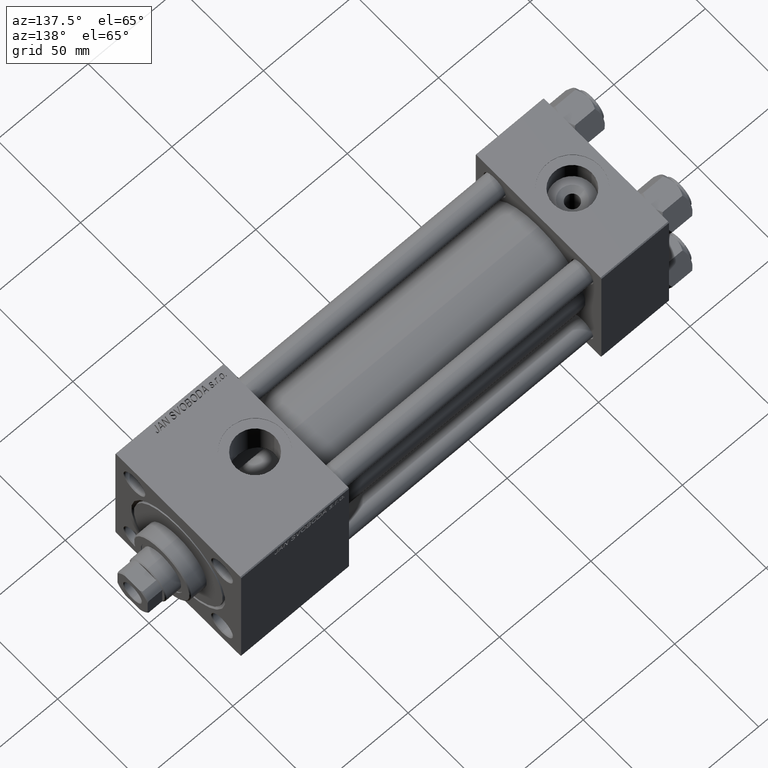
[diagram: clean part render]
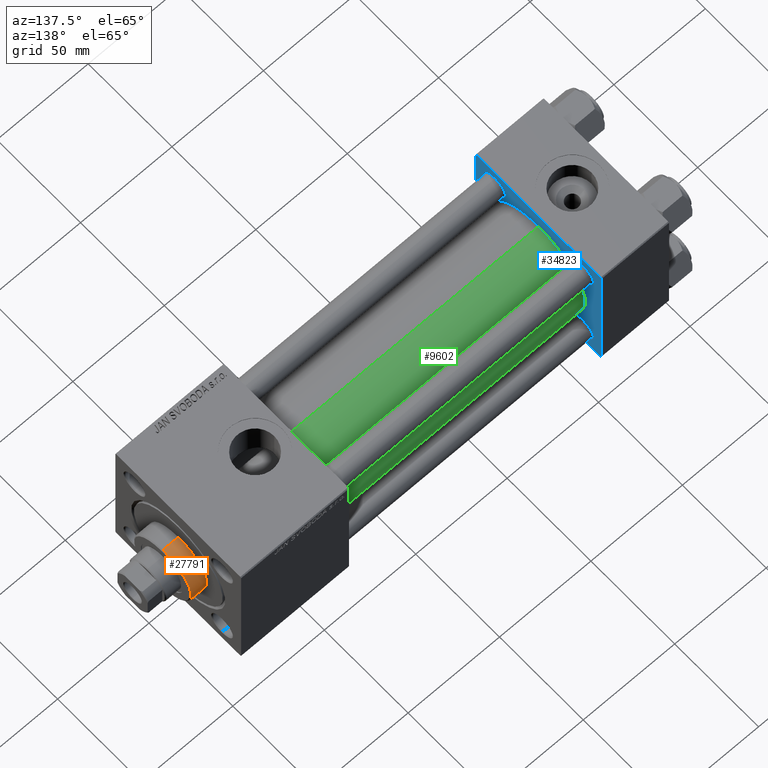
[diagram: same view with three faces highlighted in distinct colors, each labeled with its STEP entity id]
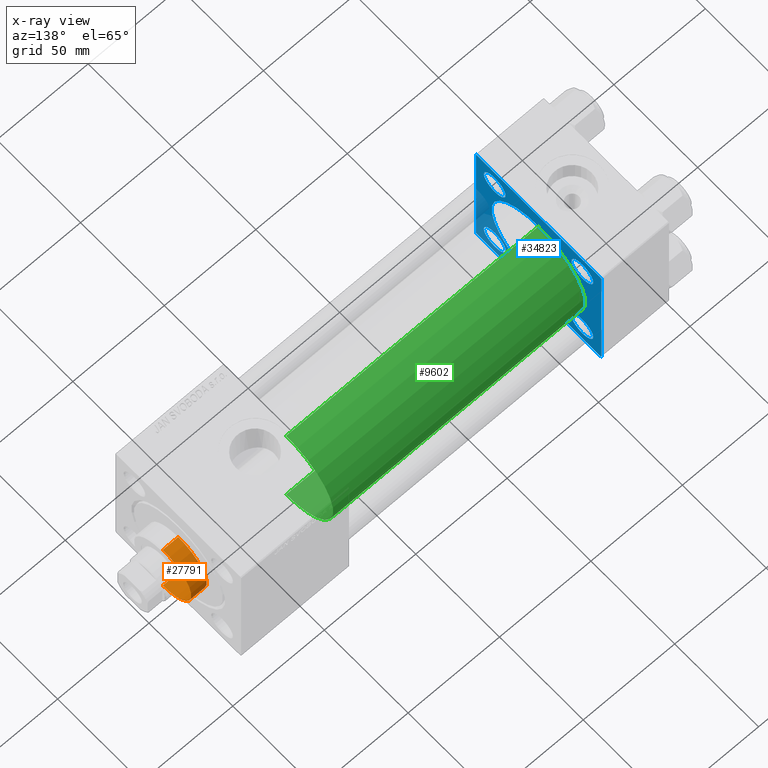
[diagram: x-ray of the same camera — body ghosted, the three highlighted faces saturated]
A machine part, auxiliary view with three faces highlighted in distinct colors.
The next image is the same camera in x-ray (body ghosted, the three faces saturated) — at least one of them is partly hidden behind the body in this view.
Their STEP definitions:

[orange] entity #27791 — the highlighted cylindrical surface (partial cylindrical patch) has radius 17 mm, axis along (-1, -0, 0).
#287 = CARTESIAN_POINT ( 'NONE',  ( 17.00000000000000000, 2.081899558550500280E-15, 28.69999999999999929 ) ) ;
#621 = CIRCLE ( 'NONE', #7906, 17.00000000000000000 ) ;
#1703 = CYLINDRICAL_SURFACE ( 'NONE', #15529, 17.00000000000000000 ) ;
#2068 = ORIENTED_EDGE ( 'NONE', *, *, #4958, .T. ) ;
#2938 = VERTEX_POINT ( 'NONE', #287 ) ;
#3227 = CARTESIAN_POINT ( 'NONE',  ( -17.00000000000000000, 0.000000000000000000, 37.19999999999999574 ) ) ;
#3911 = CIRCLE ( 'NONE', #42826, 17.00000000000000000 ) ;
#4677 = CARTESIAN_POINT ( 'NONE',  ( -17.00000000000000000, 0.000000000000000000, 28.69999999999999929 ) ) ;
#4958 = EDGE_CURVE ( 'NONE', #2938, #11171, #3911, .T. ) ;
#5667 = VECTOR ( 'NONE', #30057, 1000.000000000000000 ) ;
#5769 = DIRECTION ( 'NONE',  ( -0.000000000000000000, -0.000000000000000000, -1.000000000000000000 ) ) ;
#6268 = EDGE_CURVE ( 'NONE', #23457, #11171, #18640, .T. ) ;
#6475 = CARTESIAN_POINT ( 'NONE',  ( 0.000000000000000000, 0.000000000000000000, 28.69999999999999929 ) ) ;
#7906 = AXIS2_PLACEMENT_3D ( 'NONE', #19051, #11450, #42174 ) ;
#11171 = VERTEX_POINT ( 'NONE', #4677 ) ;
#11450 = DIRECTION ( 'NONE',  ( 0.000000000000000000, 0.000000000000000000, -1.000000000000000000 ) ) ;
#12272 = VECTOR ( 'NONE', #46386, 1000.000000000000000 ) ;
#13356 = DIRECTION ( 'NONE',  ( -1.000000000000000000, 0.000000000000000000, 0.000000000000000000 ) ) ;
#14586 = CARTESIAN_POINT ( 'NONE',  ( -17.00000000000000000, 0.000000000000000000, 37.69999999999999574 ) ) ;
#15529 = AXIS2_PLACEMENT_3D ( 'NONE', #17172, #5769, #13356 ) ;
#17172 = CARTESIAN_POINT ( 'NONE',  ( 0.000000000000000000, 0.000000000000000000, 37.69999999999999574 ) ) ;
#18131 = DIRECTION ( 'NONE',  ( 1.000000000000000000, 0.000000000000000000, 0.000000000000000000 ) ) ;
#18640 = LINE ( 'NONE', #14586, #5667 ) ;
#19051 = CARTESIAN_POINT ( 'NONE',  ( 0.000000000000000000, 0.000000000000000000, 37.19999999999999574 ) ) ;
#19279 = CARTESIAN_POINT ( 'NONE',  ( 17.00000000000000000, 2.081899558550500280E-15, 37.19999999999999574 ) ) ;
#20982 = FACE_OUTER_BOUND ( 'NONE', #40441, .T. ) ;
#21948 = DIRECTION ( 'NONE',  ( 0.000000000000000000, 0.000000000000000000, 1.000000000000000000 ) ) ;
#23457 = VERTEX_POINT ( 'NONE', #3227 ) ;
#26773 = EDGE_CURVE ( 'NONE', #48679, #2938, #41827, .T. ) ;
#27791 = ADVANCED_FACE ( 'NONE', ( #20982 ), #1703, .T. ) ;
#30057 = DIRECTION ( 'NONE',  ( -0.000000000000000000, -0.000000000000000000, -1.000000000000000000 ) ) ;
#30884 = CARTESIAN_POINT ( 'NONE',  ( 17.00000000000000000, 2.081899558550500280E-15, 37.69999999999999574 ) ) ;
#37750 = ORIENTED_EDGE ( 'NONE', *, *, #26773, .T. ) ;
#40441 = EDGE_LOOP ( 'NONE', ( #49896, #37750, #2068, #44339 ) ) ;
#41827 = LINE ( 'NONE', #30884, #12272 ) ;
#42174 = DIRECTION ( 'NONE',  ( 1.000000000000000000, 0.000000000000000000, 0.000000000000000000 ) ) ;
#42826 = AXIS2_PLACEMENT_3D ( 'NONE', #6475, #21948, #18131 ) ;
#42971 = EDGE_CURVE ( 'NONE', #23457, #48679, #621, .T. ) ;
#44339 = ORIENTED_EDGE ( 'NONE', *, *, #6268, .F. ) ;
#46386 = DIRECTION ( 'NONE',  ( -0.000000000000000000, -0.000000000000000000, -1.000000000000000000 ) ) ;
#48679 = VERTEX_POINT ( 'NONE', #19279 ) ;
#49896 = ORIENTED_EDGE ( 'NONE', *, *, #42971, .T. ) ;

[blue] entity #34823 — the highlighted planar face has unit normal (-1, 0, 0).
#612 = DIRECTION ( 'NONE',  ( -1.000000000000000000, 0.000000000000000000, -0.000000000000000000 ) ) ;
#688 = EDGE_CURVE ( 'NONE', #10340, #21144, #49224, .T. ) ;
#1850 = DIRECTION ( 'NONE',  ( 0.000000000000000000, -1.000000000000000000, -9.251858538542972814E-17 ) ) ;
#1995 = DIRECTION ( 'NONE',  ( 0.000000000000000000, 0.000000000000000000, 1.000000000000000000 ) ) ;
#2010 = AXIS2_PLACEMENT_3D ( 'NONE', #36579, #32755, #48255 ) ;
#2434 = CARTESIAN_POINT ( 'NONE',  ( 37.00000000000000000, 26.14999999999999858, -32.65000000000000568 ) ) ;
#2921 = FACE_BOUND ( 'NONE', #47986, .T. ) ;
#2944 = VERTEX_POINT ( 'NONE', #24625 ) ;
#3003 = DIRECTION ( 'NONE',  ( 0.000000000000000000, 0.000000000000000000, 1.000000000000000000 ) ) ;
#3198 = DIRECTION ( 'NONE',  ( -0.000000000000000000, -0.7071067811865474617, -0.7071067811865474617 ) ) ;
#3251 = CIRCLE ( 'NONE', #25264, 6.499999999999946709 ) ;
#3284 = VERTEX_POINT ( 'NONE', #29467 ) ;
#3573 = ORIENTED_EDGE ( 'NONE', *, *, #40226, .F. ) ;
#3740 = VECTOR ( 'NONE', #30381, 1000.000000000000000 ) ;
#3941 = VERTEX_POINT ( 'NONE', #23660 ) ;
#3973 = CARTESIAN_POINT ( 'NONE',  ( 37.00000000000000000, 37.49999999999999289, 37.00000000000000000 ) ) ;
#4045 = ORIENTED_EDGE ( 'NONE', *, *, #28764, .T. ) ;
#4665 = CARTESIAN_POINT ( 'NONE',  ( 37.00000000000000000, 0.000000000000000000, 0.000000000000000000 ) ) ;
#5089 = VERTEX_POINT ( 'NONE', #49361 ) ;
#5404 = DIRECTION ( 'NONE',  ( -1.000000000000000000, 0.000000000000000000, -0.000000000000000000 ) ) ;
#5654 = VERTEX_POINT ( 'NONE', #3973 ) ;
#5739 = VECTOR ( 'NONE', #37949, 1000.000000000000000 ) ;
#5807 = ORIENTED_EDGE ( 'NONE', *, *, #44499, .T. ) ;
#6082 = EDGE_CURVE ( 'NONE', #9907, #5089, #3251, .T. ) ;
#6210 = DIRECTION ( 'NONE',  ( 0.000000000000000000, 0.000000000000000000, 1.000000000000000000 ) ) ;
#6220 = VERTEX_POINT ( 'NONE', #6481 ) ;
#6369 = DIRECTION ( 'NONE',  ( -0.000000000000000000, 0.7071067811865474617, 0.7071067811865474617 ) ) ;
#6481 = CARTESIAN_POINT ( 'NONE',  ( 37.00000000000000000, -37.00000000000002132, -37.50000000000000711 ) ) ;
#6544 = AXIS2_PLACEMENT_3D ( 'NONE', #45020, #9993, #37159 ) ;
#6571 = CARTESIAN_POINT ( 'NONE',  ( 37.00000000000000000, -26.14999999999999147, 26.15000000000000924 ) ) ;
#7937 = CIRCLE ( 'NONE', #12772, 6.499999999999953815 ) ;
#7982 = PLANE ( 'NONE',  #11575 ) ;
#8479 = ORIENTED_EDGE ( 'NONE', *, *, #35259, .F. ) ;
#8784 = EDGE_CURVE ( 'NONE', #28147, #24603, #26372, .T. ) ;
#8829 = CARTESIAN_POINT ( 'NONE',  ( 37.00000000000000000, 37.49999999999999289, 37.50000000000000000 ) ) ;
#8843 = CIRCLE ( 'NONE', #46120, 6.500000000000002665 ) ;
#9732 = EDGE_CURVE ( 'NONE', #20660, #2944, #28932, .T. ) ;
#9907 = VERTEX_POINT ( 'NONE', #27624 ) ;
#9993 = DIRECTION ( 'NONE',  ( -1.000000000000000000, 0.000000000000000000, -0.000000000000000000 ) ) ;
#10303 = LINE ( 'NONE', #37224, #26903 ) ;
#10340 = VERTEX_POINT ( 'NONE', #2434 ) ;
#11575 = AXIS2_PLACEMENT_3D ( 'NONE', #4665, #612, #16089 ) ;
#11733 = VERTEX_POINT ( 'NONE', #49692 ) ;
#12321 = DIRECTION ( 'NONE',  ( 0.000000000000000000, 0.000000000000000000, 1.000000000000000000 ) ) ;
#12331 = EDGE_LOOP ( 'NONE', ( #46633, #44428 ) ) ;
#12772 = AXIS2_PLACEMENT_3D ( 'NONE', #25992, #18123, #6210 ) ;
#13121 = DIRECTION ( 'NONE',  ( 0.000000000000000000, -1.000000000000000000, -9.251858538542971581E-17 ) ) ;
#13624 = VECTOR ( 'NONE', #21484, 1000.000000000000114 ) ;
#13874 = LINE ( 'NONE', #17673, #13624 ) ;
#14467 = DIRECTION ( 'NONE',  ( -1.000000000000000000, 0.000000000000000000, -0.000000000000000000 ) ) ;
#14472 = EDGE_CURVE ( 'NONE', #5654, #20483, #13874, .T. ) ;
#14599 = FACE_BOUND ( 'NONE', #37975, .T. ) ;
#15032 = ORIENTED_EDGE ( 'NONE', *, *, #9732, .T. ) ;
#15066 = VECTOR ( 'NONE', #46177, 1000.000000000000000 ) ;
#16089 = DIRECTION ( 'NONE',  ( -0.000000000000000000, 0.000000000000000000, 1.000000000000000000 ) ) ;
#16160 = AXIS2_PLACEMENT_3D ( 'NONE', #29498, #5404, #32300 ) ;
#16501 = ORIENTED_EDGE ( 'NONE', *, *, #6082, .T. ) ;
#16672 = ORIENTED_EDGE ( 'NONE', *, *, #21079, .T. ) ;
#16697 = CIRCLE ( 'NONE', #23175, 28.00000000000000000 ) ;
#17411 = EDGE_LOOP ( 'NONE', ( #30363, #17421 ) ) ;
#17421 = ORIENTED_EDGE ( 'NONE', *, *, #39130, .T. ) ;
#17673 = CARTESIAN_POINT ( 'NONE',  ( 37.00000000000000000, 36.99999999999999289, 37.50000000000000000 ) ) ;
#17771 = CARTESIAN_POINT ( 'NONE',  ( 37.00000000000000000, 26.14999999999999858, -26.15000000000000213 ) ) ;
#18025 = DIRECTION ( 'NONE',  ( 0.000000000000000000, 0.000000000000000000, 1.000000000000000000 ) ) ;
#18123 = DIRECTION ( 'NONE',  ( -1.000000000000000000, 0.000000000000000000, -0.000000000000000000 ) ) ;
#18333 = ORIENTED_EDGE ( 'NONE', *, *, #30956, .T. ) ;
#18407 = CIRCLE ( 'NONE', #28822, 6.500000000000008882 ) ;
#18557 = ORIENTED_EDGE ( 'NONE', *, *, #47793, .T. ) ;
#19935 = DIRECTION ( 'NONE',  ( -1.000000000000000000, 0.000000000000000000, -0.000000000000000000 ) ) ;
#20215 = AXIS2_PLACEMENT_3D ( 'NONE', #6571, #41821, #1995 ) ;
#20271 = EDGE_CURVE ( 'NONE', #20660, #6220, #37124, .T. ) ;
#20483 = VERTEX_POINT ( 'NONE', #21838 ) ;
#20503 = EDGE_CURVE ( 'NONE', #21144, #10340, #8843, .T. ) ;
#20660 = VERTEX_POINT ( 'NONE', #20694 ) ;
#20694 = CARTESIAN_POINT ( 'NONE',  ( 37.00000000000000000, 36.99999999999997868, -37.50000000000000000 ) ) ;
#20739 = ORIENTED_EDGE ( 'NONE', *, *, #8784, .T. ) ;
#21079 = EDGE_CURVE ( 'NONE', #5089, #9907, #25074, .T. ) ;
#21144 = VERTEX_POINT ( 'NONE', #44997 ) ;
#21312 = VECTOR ( 'NONE', #13121, 1000.000000000000000 ) ;
#21460 = CARTESIAN_POINT ( 'NONE',  ( 37.00000000000000000, 37.49999999999999289, 37.50000000000000000 ) ) ;
#21484 = DIRECTION ( 'NONE',  ( 0.000000000000000000, -0.7071067811865474617, 0.7071067811865474617 ) ) ;
#21838 = CARTESIAN_POINT ( 'NONE',  ( 37.00000000000000000, 36.99999999999999289, 37.50000000000000000 ) ) ;
#22207 = FACE_BOUND ( 'NONE', #12331, .T. ) ;
#22450 = LINE ( 'NONE', #21460, #5739 ) ;
#22528 = CARTESIAN_POINT ( 'NONE',  ( 37.00000000000000000, -37.00000000000002132, -37.50000000000000711 ) ) ;
#23026 = CARTESIAN_POINT ( 'NONE',  ( 37.00000000000000000, -26.14999999999999147, 19.65000000000005542 ) ) ;
#23175 = AXIS2_PLACEMENT_3D ( 'NONE', #28335, #36716, #31893 ) ;
#23660 = CARTESIAN_POINT ( 'NONE',  ( 37.00000000000000000, 26.14999999999999858, 32.65000000000001279 ) ) ;
#24401 = EDGE_CURVE ( 'NONE', #5654, #2944, #22450, .T. ) ;
#24603 = VERTEX_POINT ( 'NONE', #36125 ) ;
#24625 = CARTESIAN_POINT ( 'NONE',  ( 37.00000000000000000, 37.49999999999999289, -36.99999999999998579 ) ) ;
#24878 = DIRECTION ( 'NONE',  ( -1.000000000000000000, 0.000000000000000000, -0.000000000000000000 ) ) ;
#25074 = CIRCLE ( 'NONE', #16160, 6.499999999999946709 ) ;
#25264 = AXIS2_PLACEMENT_3D ( 'NONE', #32607, #19935, #12321 ) ;
#25992 = CARTESIAN_POINT ( 'NONE',  ( 37.00000000000000000, -26.14999999999999147, 26.15000000000000924 ) ) ;
#26372 = LINE ( 'NONE', #49503, #15066 ) ;
#26903 = VECTOR ( 'NONE', #3198, 1000.000000000000114 ) ;
#27624 = CARTESIAN_POINT ( 'NONE',  ( 37.00000000000000000, -26.14999999999999147, -32.64999999999995595 ) ) ;
#28147 = VERTEX_POINT ( 'NONE', #36590 ) ;
#28335 = CARTESIAN_POINT ( 'NONE',  ( 37.00000000000000711, -2.602085213965210642E-15, 0.000000000000000000 ) ) ;
#28394 = CIRCLE ( 'NONE', #6544, 6.500000000000008882 ) ;
#28536 = VERTEX_POINT ( 'NONE', #23026 ) ;
#28764 = EDGE_CURVE ( 'NONE', #3284, #28147, #10303, .T. ) ;
#28822 = AXIS2_PLACEMENT_3D ( 'NONE', #49211, #37771, #3003 ) ;
#28932 = LINE ( 'NONE', #36575, #40997 ) ;
#29083 = VECTOR ( 'NONE', #1850, 1000.000000000000000 ) ;
#29467 = CARTESIAN_POINT ( 'NONE',  ( 37.00000000000000000, -37.00000000000000711, 37.49999999999999289 ) ) ;
#29498 = CARTESIAN_POINT ( 'NONE',  ( 37.00000000000000000, -26.14999999999999147, -26.15000000000000924 ) ) ;
#30074 = FACE_OUTER_BOUND ( 'NONE', #30446, .T. ) ;
#30363 = ORIENTED_EDGE ( 'NONE', *, *, #49392, .T. ) ;
#30381 = DIRECTION ( 'NONE',  ( 0.000000000000000000, 0.7071067811865524577, -0.7071067811865426878 ) ) ;
#30446 = EDGE_LOOP ( 'NONE', ( #36737, #15032, #37419, #48315, #18333, #4045, #20739, #34799 ) ) ;
#30956 = EDGE_CURVE ( 'NONE', #20483, #3284, #31907, .T. ) ;
#31605 = VERTEX_POINT ( 'NONE', #45909 ) ;
#31893 = DIRECTION ( 'NONE',  ( 0.000000000000000000, 0.000000000000000000, 1.000000000000000000 ) ) ;
#31907 = LINE ( 'NONE', #8829, #21312 ) ;
#32300 = DIRECTION ( 'NONE',  ( 0.000000000000000000, 0.000000000000000000, 1.000000000000000000 ) ) ;
#32607 = CARTESIAN_POINT ( 'NONE',  ( 37.00000000000000000, -26.14999999999999147, -26.15000000000000924 ) ) ;
#32755 = DIRECTION ( 'NONE',  ( 1.000000000000000000, -0.000000000000000000, 0.000000000000000000 ) ) ;
#33876 = FACE_BOUND ( 'NONE', #17411, .T. ) ;
#34799 = ORIENTED_EDGE ( 'NONE', *, *, #37054, .T. ) ;
#34823 = ADVANCED_FACE ( 'NONE', ( #41505, #22207, #2921, #33876, #14599, #30074 ), #7982, .F. ) ;
#35259 = EDGE_CURVE ( 'NONE', #31605, #40327, #38455, .T. ) ;
#35400 = CARTESIAN_POINT ( 'NONE',  ( 37.00000000000000711, -2.602085213965210642E-15, 28.00000000000000000 ) ) ;
#36125 = CARTESIAN_POINT ( 'NONE',  ( 37.00000000000000000, -37.50000000000000000, -37.00000000000003553 ) ) ;
#36575 = CARTESIAN_POINT ( 'NONE',  ( 37.00000000000000000, 37.49999999999999289, -36.99999999999998579 ) ) ;
#36579 = CARTESIAN_POINT ( 'NONE',  ( 37.00000000000000711, -2.602085213965210642E-15, 0.000000000000000000 ) ) ;
#36590 = CARTESIAN_POINT ( 'NONE',  ( 37.00000000000000000, -37.50000000000000711, 36.99999999999999289 ) ) ;
#36716 = DIRECTION ( 'NONE',  ( 1.000000000000000000, -0.000000000000000000, 0.000000000000000000 ) ) ;
#36737 = ORIENTED_EDGE ( 'NONE', *, *, #20271, .F. ) ;
#37054 = EDGE_CURVE ( 'NONE', #24603, #6220, #37286, .T. ) ;
#37124 = LINE ( 'NONE', #40170, #29083 ) ;
#37159 = DIRECTION ( 'NONE',  ( 0.000000000000000000, 0.000000000000000000, 1.000000000000000000 ) ) ;
#37224 = CARTESIAN_POINT ( 'NONE',  ( 37.00000000000000000, -37.50000000000000711, 36.99999999999999289 ) ) ;
#37286 = LINE ( 'NONE', #22528, #3740 ) ;
#37419 = ORIENTED_EDGE ( 'NONE', *, *, #24401, .F. ) ;
#37771 = DIRECTION ( 'NONE',  ( -1.000000000000000000, 0.000000000000000000, -0.000000000000000000 ) ) ;
#37815 = CARTESIAN_POINT ( 'NONE',  ( 37.00000000000000000, 26.14999999999999858, -26.15000000000000213 ) ) ;
#37832 = AXIS2_PLACEMENT_3D ( 'NONE', #17771, #24878, #18025 ) ;
#37949 = DIRECTION ( 'NONE',  ( 0.000000000000000000, 0.000000000000000000, -1.000000000000000000 ) ) ;
#37975 = EDGE_LOOP ( 'NONE', ( #3573, #8479 ) ) ;
#38072 = DIRECTION ( 'NONE',  ( 0.000000000000000000, 0.000000000000000000, 1.000000000000000000 ) ) ;
#38455 = CIRCLE ( 'NONE', #2010, 28.00000000000000000 ) ;
#39130 = EDGE_CURVE ( 'NONE', #3941, #41082, #18407, .T. ) ;
#40024 = EDGE_LOOP ( 'NONE', ( #16501, #16672 ) ) ;
#40170 = CARTESIAN_POINT ( 'NONE',  ( 37.00000000000000000, 37.49999999999999289, -37.50000000000000000 ) ) ;
#40226 = EDGE_CURVE ( 'NONE', #40327, #31605, #16697, .T. ) ;
#40283 = CARTESIAN_POINT ( 'NONE',  ( 37.00000000000000000, 26.14999999999999858, 19.64999999999999858 ) ) ;
#40327 = VERTEX_POINT ( 'NONE', #35400 ) ;
#40997 = VECTOR ( 'NONE', #6369, 1000.000000000000114 ) ;
#41082 = VERTEX_POINT ( 'NONE', #40283 ) ;
#41505 = FACE_BOUND ( 'NONE', #40024, .T. ) ;
#41821 = DIRECTION ( 'NONE',  ( -1.000000000000000000, 0.000000000000000000, -0.000000000000000000 ) ) ;
#42110 = CIRCLE ( 'NONE', #20215, 6.499999999999953815 ) ;
#44428 = ORIENTED_EDGE ( 'NONE', *, *, #20503, .T. ) ;
#44499 = EDGE_CURVE ( 'NONE', #11733, #28536, #7937, .T. ) ;
#44997 = CARTESIAN_POINT ( 'NONE',  ( 37.00000000000000000, 26.14999999999999858, -19.65000000000000213 ) ) ;
#45020 = CARTESIAN_POINT ( 'NONE',  ( 37.00000000000000000, 26.14999999999999858, 26.15000000000000213 ) ) ;
#45909 = CARTESIAN_POINT ( 'NONE',  ( 37.00000000000000711, 8.269258236473784371E-16, -28.00000000000000000 ) ) ;
#46120 = AXIS2_PLACEMENT_3D ( 'NONE', #37815, #14467, #38072 ) ;
#46177 = DIRECTION ( 'NONE',  ( 0.000000000000000000, 9.251858538542971581E-17, -1.000000000000000000 ) ) ;
#46633 = ORIENTED_EDGE ( 'NONE', *, *, #688, .T. ) ;
#47793 = EDGE_CURVE ( 'NONE', #28536, #11733, #42110, .T. ) ;
#47986 = EDGE_LOOP ( 'NONE', ( #18557, #5807 ) ) ;
#48255 = DIRECTION ( 'NONE',  ( 0.000000000000000000, 0.000000000000000000, 1.000000000000000000 ) ) ;
#48315 = ORIENTED_EDGE ( 'NONE', *, *, #14472, .T. ) ;
#49211 = CARTESIAN_POINT ( 'NONE',  ( 37.00000000000000000, 26.14999999999999858, 26.15000000000000213 ) ) ;
#49224 = CIRCLE ( 'NONE', #37832, 6.500000000000002665 ) ;
#49361 = CARTESIAN_POINT ( 'NONE',  ( 37.00000000000000000, -26.14999999999999147, -19.65000000000006253 ) ) ;
#49392 = EDGE_CURVE ( 'NONE', #41082, #3941, #28394, .T. ) ;
#49503 = CARTESIAN_POINT ( 'NONE',  ( 37.00000000000000000, -37.50000000000000711, 37.49999999999999289 ) ) ;
#49692 = CARTESIAN_POINT ( 'NONE',  ( 37.00000000000000000, -26.14999999999999147, 32.64999999999996305 ) ) ;

[green] entity #9602 — the highlighted cylindrical surface (partial cylindrical patch) has radius 28 mm, axis along (-1, -0, -0).
#625 = EDGE_CURVE ( 'NONE', #3205, #17246, #42712, .T. ) ;
#2010 = AXIS2_PLACEMENT_3D ( 'NONE', #36579, #32755, #48255 ) ;
#3205 = VERTEX_POINT ( 'NONE', #47775 ) ;
#3253 = LINE ( 'NONE', #48960, #47539 ) ;
#6616 = DIRECTION ( 'NONE',  ( 1.000000000000000000, 0.000000000000000000, 0.000000000000000000 ) ) ;
#9577 = VECTOR ( 'NONE', #29345, 1000.000000000000000 ) ;
#9602 = ADVANCED_FACE ( 'NONE', ( #14776 ), #42678, .T. ) ;
#14508 = EDGE_CURVE ( 'NONE', #17246, #40327, #16923, .T. ) ;
#14776 = FACE_OUTER_BOUND ( 'NONE', #43638, .T. ) ;
#15323 = CARTESIAN_POINT ( 'NONE',  ( 175.0000000000000284, -2.602085213965210642E-15, 28.00000000000000000 ) ) ;
#16661 = AXIS2_PLACEMENT_3D ( 'NONE', #23377, #30482, #45981 ) ;
#16923 = LINE ( 'NONE', #48400, #9577 ) ;
#17057 = ORIENTED_EDGE ( 'NONE', *, *, #14508, .F. ) ;
#17246 = VERTEX_POINT ( 'NONE', #15323 ) ;
#23377 = CARTESIAN_POINT ( 'NONE',  ( 175.0000000000000284, -2.602085213965210642E-15, 0.000000000000000000 ) ) ;
#26465 = AXIS2_PLACEMENT_3D ( 'NONE', #41380, #6616, #40884 ) ;
#29345 = DIRECTION ( 'NONE',  ( -1.000000000000000000, -0.000000000000000000, -0.000000000000000000 ) ) ;
#30006 = ORIENTED_EDGE ( 'NONE', *, *, #35259, .T. ) ;
#30482 = DIRECTION ( 'NONE',  ( -1.000000000000000000, -0.000000000000000000, -0.000000000000000000 ) ) ;
#31605 = VERTEX_POINT ( 'NONE', #45909 ) ;
#32755 = DIRECTION ( 'NONE',  ( 1.000000000000000000, -0.000000000000000000, 0.000000000000000000 ) ) ;
#35259 = EDGE_CURVE ( 'NONE', #31605, #40327, #38455, .T. ) ;
#35400 = CARTESIAN_POINT ( 'NONE',  ( 37.00000000000000711, -2.602085213965210642E-15, 28.00000000000000000 ) ) ;
#36579 = CARTESIAN_POINT ( 'NONE',  ( 37.00000000000000711, -2.602085213965210642E-15, 0.000000000000000000 ) ) ;
#36969 = EDGE_CURVE ( 'NONE', #3205, #31605, #3253, .T. ) ;
#37769 = DIRECTION ( 'NONE',  ( -1.000000000000000000, -0.000000000000000000, -0.000000000000000000 ) ) ;
#38455 = CIRCLE ( 'NONE', #2010, 28.00000000000000000 ) ;
#39745 = ORIENTED_EDGE ( 'NONE', *, *, #625, .F. ) ;
#40327 = VERTEX_POINT ( 'NONE', #35400 ) ;
#40884 = DIRECTION ( 'NONE',  ( 0.000000000000000000, 0.000000000000000000, -1.000000000000000000 ) ) ;
#41380 = CARTESIAN_POINT ( 'NONE',  ( 175.0000000000000284, -2.602085213965210642E-15, 0.000000000000000000 ) ) ;
#42678 = CYLINDRICAL_SURFACE ( 'NONE', #16661, 28.00000000000000000 ) ;
#42712 = CIRCLE ( 'NONE', #26465, 28.00000000000000000 ) ;
#43638 = EDGE_LOOP ( 'NONE', ( #39745, #48517, #30006, #17057 ) ) ;
#45909 = CARTESIAN_POINT ( 'NONE',  ( 37.00000000000000711, 8.269258236473784371E-16, -28.00000000000000000 ) ) ;
#45981 = DIRECTION ( 'NONE',  ( 0.000000000000000000, 0.000000000000000000, 1.000000000000000000 ) ) ;
#47539 = VECTOR ( 'NONE', #37769, 1000.000000000000000 ) ;
#47775 = CARTESIAN_POINT ( 'NONE',  ( 175.0000000000000284, 8.269258236473784371E-16, -28.00000000000000000 ) ) ;
#48255 = DIRECTION ( 'NONE',  ( 0.000000000000000000, 0.000000000000000000, 1.000000000000000000 ) ) ;
#48400 = CARTESIAN_POINT ( 'NONE',  ( 175.0000000000000284, -2.602085213965210642E-15, 28.00000000000000000 ) ) ;
#48517 = ORIENTED_EDGE ( 'NONE', *, *, #36969, .T. ) ;
#48960 = CARTESIAN_POINT ( 'NONE',  ( 175.0000000000000284, 8.269258236473784371E-16, -28.00000000000000000 ) ) ;